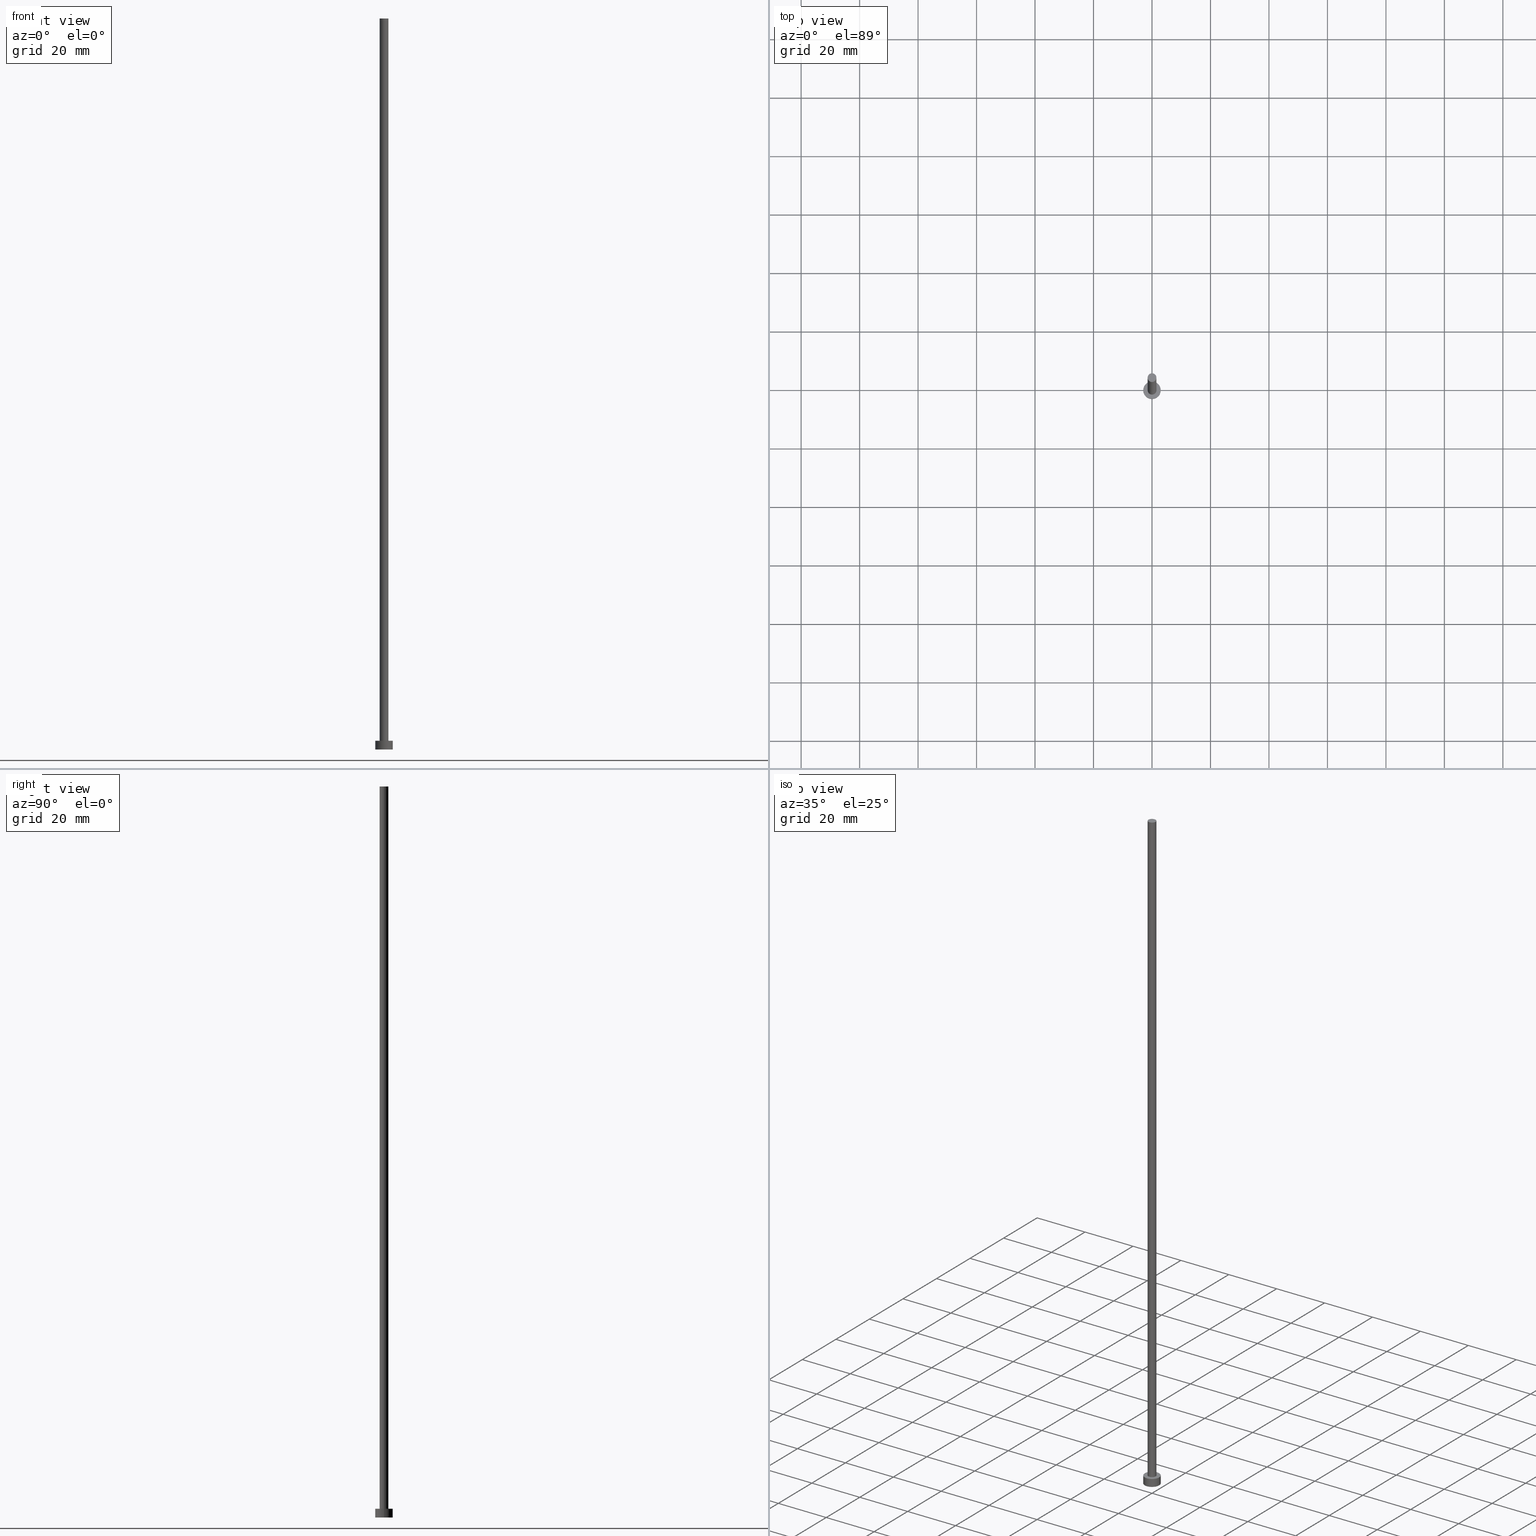
[diagram: canonical four-view strip — front | top / right | iso, engineering-drawing reading convention]
A machine part, canonical four-view strip (front | top / right | iso — engineering-drawing reading convention). The complete STEP part file that produces these views, byte-faithful:
ISO-10303-21;
HEADER;
FILE_DESCRIPTION (( 'STEP AP203' ),
    '1' );
FILE_NAME ('7383.STEP',
    '2023-02-13T16:26:57',
    ( '' ),
    ( '' ),
    'SwSTEP 2.0',
    'SolidWorks 2019',
    '' );
FILE_SCHEMA (( 'CONFIG_CONTROL_DESIGN' ));
ENDSEC;

DATA;
#1 = EDGE_LOOP ( 'NONE', ( #223, #5 ) ) ;
#2 = DIRECTION ( 'NONE',  ( -0.000000000000000000, -0.000000000000000000, -1.000000000000000000 ) ) ;
#3 = ADVANCED_FACE ( 'NONE', ( #151 ), #20, .T. ) ;
#4 = EDGE_LOOP ( 'NONE', ( #90, #170 ) ) ;
#5 = ORIENTED_EDGE ( 'NONE', *, *, #73, .F. ) ;
#6 = DIRECTION ( 'NONE',  ( 0.000000000000000000, 0.000000000000000000, 1.000000000000000000 ) ) ;
#7 = EDGE_CURVE ( 'NONE', #197, #132, #174, .T. ) ;
#8 = CARTESIAN_POINT ( 'NONE',  ( 0.000000000000000000, 0.000000000000000000, 250.0000000000000000 ) ) ;
#9 = AXIS2_PLACEMENT_3D ( 'NONE', #243, #116, #184 ) ;
#10 = PLANE ( 'NONE',  #245 ) ;
#11 = DIRECTION ( 'NONE',  ( 0.000000000000000000, 0.000000000000000000, 1.000000000000000000 ) ) ;
#12 = COORDINATED_UNIVERSAL_TIME_OFFSET ( 1, 0, .AHEAD. ) ;
#13 = ADVANCED_FACE ( 'NONE', ( #29 ), #205, .T. ) ;
#14 = DIRECTION ( 'NONE',  ( -0.000000000000000000, -0.000000000000000000, -1.000000000000000000 ) ) ;
#15 = CIRCLE ( 'NONE', #146, 3.000000000000000444 ) ;
#16 = EDGE_CURVE ( 'NONE', #197, #154, #200, .T. ) ;
#17 = CIRCLE ( 'NONE', #9, 1.500000000000000222 ) ;
#18 = EDGE_LOOP ( 'NONE', ( #94, #79, #106, #176 ) ) ;
#19 = AXIS2_PLACEMENT_3D ( 'NONE', #246, #61, #135 ) ;
#20 = CYLINDRICAL_SURFACE ( 'NONE', #122, 3.000000000000000444 ) ;
#21 = EDGE_LOOP ( 'NONE', ( #193, #43, #255, #239 ) ) ;
#22 = APPROVAL_ROLE ( '' ) ;
#23 = ORIENTED_EDGE ( 'NONE', *, *, #16, .F. ) ;
#24 = PERSON_AND_ORGANIZATION_ROLE ( 'design_owner' ) ;
#25 = LOCAL_TIME ( 17, 26, 57.00000000000000000, #147 ) ;
#26 = PERSON_AND_ORGANIZATION_ROLE ( 'creator' ) ;
#27 = CARTESIAN_POINT ( 'NONE',  ( -1.500000000000000222, 0.000000000000000000, 250.0000000000000000 ) ) ;
#28 = EDGE_CURVE ( 'NONE', #134, #41, #182, .T. ) ;
#29 = FACE_OUTER_BOUND ( 'NONE', #18, .T. ) ;
#30 = DIRECTION ( 'NONE',  ( 0.000000000000000000, 0.000000000000000000, 1.000000000000000000 ) ) ;
#31 = CARTESIAN_POINT ( 'NONE',  ( 0.000000000000000000, 0.000000000000000000, 0.000000000000000000 ) ) ;
#32 = CC_DESIGN_PERSON_AND_ORGANIZATION_ASSIGNMENT ( #47, #24, ( #65 ) ) ;
#33 = CARTESIAN_POINT ( 'NONE',  ( 0.000000000000000000, 0.000000000000000000, 3.000000000000000000 ) ) ;
#34 =( LENGTH_UNIT ( ) NAMED_UNIT ( * ) SI_UNIT ( .MILLI., .METRE. ) );
#35 = CYLINDRICAL_SURFACE ( 'NONE', #207, 1.500000000000000222 ) ;
#36 = APPLICATION_CONTEXT ( 'configuration controlled 3d designs of mechanical parts and assemblies' ) ;
#37 = CC_DESIGN_PERSON_AND_ORGANIZATION_ASSIGNMENT ( #253, #148, ( #107 ) ) ;
#38 = SHAPE_DEFINITION_REPRESENTATION ( #121, #198 ) ;
#39 = ORIENTED_EDGE ( 'NONE', *, *, #230, .T. ) ;
#40 = AXIS2_PLACEMENT_3D ( 'NONE', #247, #11, #67 ) ;
#41 = VERTEX_POINT ( 'NONE', #117 ) ;
#42 = LOCAL_TIME ( 17, 26, 57.00000000000000000, #12 ) ;
#43 = ORIENTED_EDGE ( 'NONE', *, *, #108, .F. ) ;
#44 = DIRECTION ( 'NONE',  ( 0.000000000000000000, 0.000000000000000000, 1.000000000000000000 ) ) ;
#45 = LINE ( 'NONE', #199, #75 ) ;
#46 = VERTEX_POINT ( 'NONE', #204 ) ;
#47 = PERSON_AND_ORGANIZATION ( #56, #165 ) ;
#48 = PRODUCT_RELATED_PRODUCT_CATEGORY ( 'detail', '', ( #65 ) ) ;
#49 = CARTESIAN_POINT ( 'NONE',  ( 0.000000000000000000, 0.000000000000000000, 250.0000000000000000 ) ) ;
#50 = PLANE ( 'NONE',  #40 ) ;
#51 = VECTOR ( 'NONE', #52, 1000.000000000000000 ) ;
#52 = DIRECTION ( 'NONE',  ( -0.000000000000000000, -0.000000000000000000, -1.000000000000000000 ) ) ;
#53 = CARTESIAN_POINT ( 'NONE',  ( -3.000000000000000444, 0.000000000000000000, 3.000000000000000000 ) ) ;
#54 = LOCAL_TIME ( 17, 26, 57.00000000000000000, #248 ) ;
#55 = APPROVAL_ROLE ( '' ) ;
#56 = PERSON ( 'NEUR�EN�', 'NEUR�EN�', 'NEUR�EN�', ('NEUR�EN�'), ('NEUR�EN�'), ('NEUR�EN�') ) ;
#57 = DATE_AND_TIME ( #209, #88 ) ;
#58 = APPROVAL_PERSON_ORGANIZATION ( #185, #192, #55 ) ;
#59 = EDGE_LOOP ( 'NONE', ( #78, #39 ) ) ;
#60 = SECURITY_CLASSIFICATION ( '', '', #72 ) ;
#61 = DIRECTION ( 'NONE',  ( 0.000000000000000000, 0.000000000000000000, 1.000000000000000000 ) ) ;
#62 = DIRECTION ( 'NONE',  ( 1.000000000000000000, 0.000000000000000000, 0.000000000000000000 ) ) ;
#63 = CARTESIAN_POINT ( 'NONE',  ( -1.500000000000000222, 0.000000000000000000, 250.0000000000000000 ) ) ;
#64 = FACE_OUTER_BOUND ( 'NONE', #4, .T. ) ;
#65 = PRODUCT ( '7383', '7383', '', ( #218 ) ) ;
#66 = MANIFOLD_SOLID_BREP ( 'P�idat vysunut�m3', #212 ) ;
#67 = DIRECTION ( 'NONE',  ( 1.000000000000000000, 0.000000000000000000, -0.000000000000000000 ) ) ;
#68 = CALENDAR_DATE ( 2023, 13, 2 ) ;
#69 = DATE_AND_TIME ( #251, #42 ) ;
#70 = DIRECTION ( 'NONE',  ( 1.000000000000000000, 0.000000000000000000, 0.000000000000000000 ) ) ;
#71 = CIRCLE ( 'NONE', #144, 3.000000000000000444 ) ;
#72 = SECURITY_CLASSIFICATION_LEVEL ( 'unclassified' ) ;
#73 = EDGE_CURVE ( 'NONE', #242, #154, #254, .T. ) ;
#74 = CARTESIAN_POINT ( 'NONE',  ( 0.000000000000000000, 0.000000000000000000, 0.000000000000000000 ) ) ;
#75 = VECTOR ( 'NONE', #201, 1000.000000000000000 ) ;
#76 = ADVANCED_FACE ( 'NONE', ( #232 ), #35, .T. ) ;
#77 = VERTEX_POINT ( 'NONE', #100 ) ;
#78 = ORIENTED_EDGE ( 'NONE', *, *, #7, .T. ) ;
#79 = ORIENTED_EDGE ( 'NONE', *, *, #211, .T. ) ;
#80 = DESIGN_CONTEXT ( 'detailed design', #36, 'design' ) ;
#81 = DIRECTION ( 'NONE',  ( 1.000000000000000000, 0.000000000000000000, 0.000000000000000000 ) ) ;
#82 = CARTESIAN_POINT ( 'NONE',  ( -3.000000000000000444, 0.000000000000000000, 3.000000000000000000 ) ) ;
#83 = CIRCLE ( 'NONE', #194, 1.500000000000000222 ) ;
#84 = DIRECTION ( 'NONE',  ( -1.000000000000000000, 0.000000000000000000, 0.000000000000000000 ) ) ;
#85 = APPROVAL_DATE_TIME ( #186, #192 ) ;
#86 = VECTOR ( 'NONE', #244, 1000.000000000000000 ) ;
#87 = CC_DESIGN_DATE_AND_TIME_ASSIGNMENT ( #57, #126, ( #60 ) ) ;
#88 = LOCAL_TIME ( 17, 26, 57.00000000000000000, #210 ) ;
#89 = PERSON_AND_ORGANIZATION ( #56, #165 ) ;
#90 = ORIENTED_EDGE ( 'NONE', *, *, #108, .T. ) ;
#91 = DIRECTION ( 'NONE',  ( -0.000000000000000000, -0.000000000000000000, -1.000000000000000000 ) ) ;
#92 = AXIS2_PLACEMENT_3D ( 'NONE', #8, #160, #179 ) ;
#93 = PERSON_AND_ORGANIZATION ( #56, #165 ) ;
#94 = ORIENTED_EDGE ( 'NONE', *, *, #113, .F. ) ;
#95 = PERSON_AND_ORGANIZATION ( #56, #165 ) ;
#96 = LINE ( 'NONE', #222, #86 ) ;
#97 = DIRECTION ( 'NONE',  ( 0.000000000000000000, 0.000000000000000000, 1.000000000000000000 ) ) ;
#98 = DIRECTION ( 'NONE',  ( 1.000000000000000000, 0.000000000000000000, 0.000000000000000000 ) ) ;
#99 = AXIS2_PLACEMENT_3D ( 'NONE', #33, #14, #84 ) ;
#100 = CARTESIAN_POINT ( 'NONE',  ( 1.500000000000000222, 1.836970198721030181E-16, 250.0000000000000000 ) ) ;
#101 = CARTESIAN_POINT ( 'NONE',  ( 0.000000000000000000, 0.000000000000000000, 250.0000000000000000 ) ) ;
#102 = APPLICATION_PROTOCOL_DEFINITION ( 'international standard', 'config_control_design', 1994, #36 ) ;
#103 = APPLICATION_PROTOCOL_DEFINITION ( 'international standard', 'config_control_design', 1994, #233 ) ;
#104 = LOCAL_TIME ( 17, 26, 57.00000000000000000, #120 ) ;
#105 = ADVANCED_FACE ( 'NONE', ( #64 ), #10, .T. ) ;
#106 = ORIENTED_EDGE ( 'NONE', *, *, #161, .T. ) ;
#107 = PRODUCT_DEFINITION_FORMATION_WITH_SPECIFIED_SOURCE ( 'LIBOVOLN�', '', #65, .NOT_KNOWN. ) ;
#108 = EDGE_CURVE ( 'NONE', #134, #77, #157, .T. ) ;
#109 = EDGE_LOOP ( 'NONE', ( #131, #217, #196, #169 ) ) ;
#110 = AXIS2_PLACEMENT_3D ( 'NONE', #219, #44, #249 ) ;
#111 = CARTESIAN_POINT ( 'NONE',  ( -3.000000000000000444, 0.000000000000000000, 0.000000000000000000 ) ) ;
#112 = ORIENTED_EDGE ( 'NONE', *, *, #73, .T. ) ;
#113 = EDGE_CURVE ( 'NONE', #77, #134, #17, .T. ) ;
#114 = DIRECTION ( 'NONE',  ( 1.000000000000000000, 0.000000000000000000, -0.000000000000000000 ) ) ;
#115 = FACE_OUTER_BOUND ( 'NONE', #1, .T. ) ;
#116 = DIRECTION ( 'NONE',  ( 0.000000000000000000, 0.000000000000000000, 1.000000000000000000 ) ) ;
#117 = CARTESIAN_POINT ( 'NONE',  ( -1.500000000000000222, 0.000000000000000000, 3.000000000000000000 ) ) ;
#118 = CC_DESIGN_SECURITY_CLASSIFICATION ( #60, ( #107 ) ) ;
#119 = FACE_OUTER_BOUND ( 'NONE', #150, .T. ) ;
#120 = COORDINATED_UNIVERSAL_TIME_OFFSET ( 1, 0, .AHEAD. ) ;
#121 = PRODUCT_DEFINITION_SHAPE ( 'NONE', 'NONE',  #220 ) ;
#122 = AXIS2_PLACEMENT_3D ( 'NONE', #172, #2, #153 ) ;
#123 =( NAMED_UNIT ( * ) SI_UNIT ( $, .STERADIAN. ) SOLID_ANGLE_UNIT ( ) );
#124 = ADVANCED_FACE ( 'NONE', ( #183, #181 ), #227, .T. ) ;
#125 = CALENDAR_DATE ( 2023, 13, 2 ) ;
#126 = DATE_TIME_ROLE ( 'classification_date' ) ;
#127 = AXIS2_PLACEMENT_3D ( 'NONE', #74, #130, #238 ) ;
#128 = APPROVAL_STATUS ( 'not_yet_approved' ) ;
#129 = CC_DESIGN_PERSON_AND_ORGANIZATION_ASSIGNMENT ( #89, #189, ( #60 ) ) ;
#130 = DIRECTION ( 'NONE',  ( 0.000000000000000000, 0.000000000000000000, 1.000000000000000000 ) ) ;
#131 = ORIENTED_EDGE ( 'NONE', *, *, #215, .F. ) ;
#132 = VERTEX_POINT ( 'NONE', #203 ) ;
#133 = APPROVAL_PERSON_ORGANIZATION ( #95, #237, #22 ) ;
#134 = VERTEX_POINT ( 'NONE', #27 ) ;
#135 = DIRECTION ( 'NONE',  ( 1.000000000000000000, 0.000000000000000000, 0.000000000000000000 ) ) ;
#136 = ORIENTED_EDGE ( 'NONE', *, *, #226, .F. ) ;
#137 = AXIS2_PLACEMENT_3D ( 'NONE', #31, #166, #70 ) ;
#138 = CARTESIAN_POINT ( 'NONE',  ( 0.000000000000000000, 0.000000000000000000, 0.000000000000000000 ) ) ;
#139 = DIRECTION ( 'NONE',  ( -0.000000000000000000, -0.000000000000000000, -1.000000000000000000 ) ) ;
#140 = DIRECTION ( 'NONE',  ( 0.000000000000000000, 0.000000000000000000, 1.000000000000000000 ) ) ;
#141 = DIRECTION ( 'NONE',  ( 1.000000000000000000, 0.000000000000000000, 0.000000000000000000 ) ) ;
#142 = CC_DESIGN_DATE_AND_TIME_ASSIGNMENT ( #175, #143, ( #220 ) ) ;
#143 = DATE_TIME_ROLE ( 'creation_date' ) ;
#144 = AXIS2_PLACEMENT_3D ( 'NONE', #138, #30, #141 ) ;
#145 = AXIS2_PLACEMENT_3D ( 'NONE', #159, #162, #114 ) ;
#146 = AXIS2_PLACEMENT_3D ( 'NONE', #156, #97, #62 ) ;
#147 = COORDINATED_UNIVERSAL_TIME_OFFSET ( 1, 0, .AHEAD. ) ;
#148 = PERSON_AND_ORGANIZATION_ROLE ( 'creator' ) ;
#149 = UNCERTAINTY_MEASURE_WITH_UNIT (LENGTH_MEASURE( 1.000000000000000082E-05 ), #34, 'distance_accuracy_value', 'NONE');
#150 = EDGE_LOOP ( 'NONE', ( #155, #173, #112, #23 ) ) ;
#151 = FACE_OUTER_BOUND ( 'NONE', #109, .T. ) ;
#152 = ADVANCED_FACE ( 'NONE', ( #115 ), #50, .F. ) ;
#153 = DIRECTION ( 'NONE',  ( -1.000000000000000000, 0.000000000000000000, 0.000000000000000000 ) ) ;
#154 = VERTEX_POINT ( 'NONE', #111 ) ;
#155 = ORIENTED_EDGE ( 'NONE', *, *, #230, .F. ) ;
#156 = CARTESIAN_POINT ( 'NONE',  ( 0.000000000000000000, 0.000000000000000000, 3.000000000000000000 ) ) ;
#157 = CIRCLE ( 'NONE', #168, 1.500000000000000222 ) ;
#158 = CARTESIAN_POINT ( 'NONE',  ( 0.000000000000000000, 0.000000000000000000, 250.0000000000000000 ) ) ;
#159 = CARTESIAN_POINT ( 'NONE',  ( 0.000000000000000000, 0.000000000000000000, 3.000000000000000000 ) ) ;
#160 = DIRECTION ( 'NONE',  ( -0.000000000000000000, -0.000000000000000000, -1.000000000000000000 ) ) ;
#161 = EDGE_CURVE ( 'NONE', #46, #41, #177, .T. ) ;
#162 = DIRECTION ( 'NONE',  ( 0.000000000000000000, 0.000000000000000000, 1.000000000000000000 ) ) ;
#163 = VECTOR ( 'NONE', #139, 1000.000000000000000 ) ;
#164 = APPROVAL_DATE_TIME ( #69, #237 ) ;
#165 = ORGANIZATION ( 'NEUR�EN�', 'NEUR�EN�', '' ) ;
#166 = DIRECTION ( 'NONE',  ( 0.000000000000000000, 0.000000000000000000, 1.000000000000000000 ) ) ;
#167 = CC_DESIGN_PERSON_AND_ORGANIZATION_ASSIGNMENT ( #234, #231, ( #107 ) ) ;
#168 = AXIS2_PLACEMENT_3D ( 'NONE', #49, #140, #98 ) ;
#169 = ORIENTED_EDGE ( 'NONE', *, *, #171, .T. ) ;
#170 = ORIENTED_EDGE ( 'NONE', *, *, #113, .T. ) ;
#171 = EDGE_CURVE ( 'NONE', #154, #242, #71, .T. ) ;
#172 = CARTESIAN_POINT ( 'NONE',  ( 0.000000000000000000, 0.000000000000000000, 3.000000000000000000 ) ) ;
#173 = ORIENTED_EDGE ( 'NONE', *, *, #215, .T. ) ;
#174 = CIRCLE ( 'NONE', #110, 3.000000000000000444 ) ;
#175 = DATE_AND_TIME ( #68, #54 ) ;
#176 = ORIENTED_EDGE ( 'NONE', *, *, #28, .F. ) ;
#177 = CIRCLE ( 'NONE', #19, 1.500000000000000222 ) ;
#178 = CARTESIAN_POINT ( 'NONE',  ( 0.000000000000000000, 0.000000000000000000, 3.000000000000000000 ) ) ;
#179 = DIRECTION ( 'NONE',  ( -1.000000000000000000, 0.000000000000000000, 0.000000000000000000 ) ) ;
#180 = DIRECTION ( 'NONE',  ( 1.000000000000000000, 0.000000000000000000, -0.000000000000000000 ) ) ;
#181 = FACE_OUTER_BOUND ( 'NONE', #59, .T. ) ;
#182 = LINE ( 'NONE', #63, #163 ) ;
#183 = FACE_BOUND ( 'NONE', #216, .T. ) ;
#184 = DIRECTION ( 'NONE',  ( 1.000000000000000000, 0.000000000000000000, 0.000000000000000000 ) ) ;
#185 = PERSON_AND_ORGANIZATION ( #56, #165 ) ;
#186 = DATE_AND_TIME ( #206, #104 ) ;
#187 =( NAMED_UNIT ( * ) PLANE_ANGLE_UNIT ( ) SI_UNIT ( $, .RADIAN. ) );
#188 = APPROVAL_ROLE ( '' ) ;
#189 = PERSON_AND_ORGANIZATION_ROLE ( 'classification_officer' ) ;
#190 = APPROVAL ( #128, 'NEUR�EN�' ) ;
#191 = DIRECTION ( 'NONE',  ( -1.000000000000000000, 0.000000000000000000, 0.000000000000000000 ) ) ;
#192 = APPROVAL ( #229, 'NEUR�EN�' ) ;
#193 = ORIENTED_EDGE ( 'NONE', *, *, #211, .F. ) ;
#194 = AXIS2_PLACEMENT_3D ( 'NONE', #178, #6, #81 ) ;
#195 = ORIENTED_EDGE ( 'NONE', *, *, #161, .F. ) ;
#196 = ORIENTED_EDGE ( 'NONE', *, *, #16, .T. ) ;
#197 = VERTEX_POINT ( 'NONE', #53 ) ;
#198 = ADVANCED_BREP_SHAPE_REPRESENTATION ( '7383', ( #66, #127 ), #225 ) ;
#199 = CARTESIAN_POINT ( 'NONE',  ( 3.000000000000000444, 3.673940397442060361E-16, 3.000000000000000000 ) ) ;
#200 = LINE ( 'NONE', #82, #51 ) ;
#201 = DIRECTION ( 'NONE',  ( -0.000000000000000000, -0.000000000000000000, -1.000000000000000000 ) ) ;
#202 = CYLINDRICAL_SURFACE ( 'NONE', #99, 3.000000000000000444 ) ;
#203 = CARTESIAN_POINT ( 'NONE',  ( 3.000000000000000444, 3.673940397442060361E-16, 3.000000000000000000 ) ) ;
#204 = CARTESIAN_POINT ( 'NONE',  ( 1.500000000000000222, 1.836970198721030181E-16, 3.000000000000000000 ) ) ;
#205 = CYLINDRICAL_SURFACE ( 'NONE', #92, 1.500000000000000222 ) ;
#206 = CALENDAR_DATE ( 2023, 13, 2 ) ;
#207 = AXIS2_PLACEMENT_3D ( 'NONE', #101, #91, #191 ) ;
#208 = ADVANCED_FACE ( 'NONE', ( #119 ), #202, .T. ) ;
#209 = CALENDAR_DATE ( 2023, 13, 2 ) ;
#210 = COORDINATED_UNIVERSAL_TIME_OFFSET ( 1, 0, .AHEAD. ) ;
#211 = EDGE_CURVE ( 'NONE', #77, #46, #96, .T. ) ;
#212 = CLOSED_SHELL ( 'NONE', ( #13, #208, #3, #124, #152, #76, #105 ) ) ;
#213 = PERSON_AND_ORGANIZATION ( #56, #165 ) ;
#214 = APPROVAL_PERSON_ORGANIZATION ( #213, #190, #188 ) ;
#215 = EDGE_CURVE ( 'NONE', #132, #242, #45, .T. ) ;
#216 = EDGE_LOOP ( 'NONE', ( #136, #195 ) ) ;
#217 = ORIENTED_EDGE ( 'NONE', *, *, #7, .F. ) ;
#218 = MECHANICAL_CONTEXT ( 'NONE', #233, 'mechanical' ) ;
#219 = CARTESIAN_POINT ( 'NONE',  ( 0.000000000000000000, 0.000000000000000000, 3.000000000000000000 ) ) ;
#220 = PRODUCT_DEFINITION ( 'NEZN�M�', '', #107, #80 ) ;
#221 = APPROVAL_STATUS ( 'not_yet_approved' ) ;
#222 = CARTESIAN_POINT ( 'NONE',  ( 1.500000000000000222, 1.836970198721030181E-16, 250.0000000000000000 ) ) ;
#223 = ORIENTED_EDGE ( 'NONE', *, *, #171, .F. ) ;
#224 = CARTESIAN_POINT ( 'NONE',  ( 3.000000000000000444, 3.673940397442060361E-16, 0.000000000000000000 ) ) ;
#225 =( GEOMETRIC_REPRESENTATION_CONTEXT ( 3 ) GLOBAL_UNCERTAINTY_ASSIGNED_CONTEXT ( ( #149 ) ) GLOBAL_UNIT_ASSIGNED_CONTEXT ( ( #34, #187, #123 ) ) REPRESENTATION_CONTEXT ( 'NONE', 'WORKASPACE' ) );
#226 = EDGE_CURVE ( 'NONE', #41, #46, #83, .T. ) ;
#227 = PLANE ( 'NONE',  #145 ) ;
#228 = DIRECTION ( 'NONE',  ( 0.000000000000000000, 0.000000000000000000, 1.000000000000000000 ) ) ;
#229 = APPROVAL_STATUS ( 'not_yet_approved' ) ;
#230 = EDGE_CURVE ( 'NONE', #132, #197, #15, .T. ) ;
#231 = PERSON_AND_ORGANIZATION_ROLE ( 'design_supplier' ) ;
#232 = FACE_OUTER_BOUND ( 'NONE', #21, .T. ) ;
#233 = APPLICATION_CONTEXT ( 'configuration controlled 3d designs of mechanical parts and assemblies' ) ;
#234 = PERSON_AND_ORGANIZATION ( #56, #165 ) ;
#235 = CC_DESIGN_APPROVAL ( #192, ( #107 ) ) ;
#236 = DATE_AND_TIME ( #125, #25 ) ;
#237 = APPROVAL ( #221, 'NEUR�EN�' ) ;
#238 = DIRECTION ( 'NONE',  ( 1.000000000000000000, 0.000000000000000000, 0.000000000000000000 ) ) ;
#239 = ORIENTED_EDGE ( 'NONE', *, *, #226, .T. ) ;
#240 = CC_DESIGN_APPROVAL ( #190, ( #60 ) ) ;
#241 = CC_DESIGN_PERSON_AND_ORGANIZATION_ASSIGNMENT ( #93, #26, ( #220 ) ) ;
#242 = VERTEX_POINT ( 'NONE', #224 ) ;
#243 = CARTESIAN_POINT ( 'NONE',  ( 0.000000000000000000, 0.000000000000000000, 250.0000000000000000 ) ) ;
#244 = DIRECTION ( 'NONE',  ( -0.000000000000000000, -0.000000000000000000, -1.000000000000000000 ) ) ;
#245 = AXIS2_PLACEMENT_3D ( 'NONE', #158, #228, #180 ) ;
#246 = CARTESIAN_POINT ( 'NONE',  ( 0.000000000000000000, 0.000000000000000000, 3.000000000000000000 ) ) ;
#247 = CARTESIAN_POINT ( 'NONE',  ( 0.000000000000000000, 0.000000000000000000, 0.000000000000000000 ) ) ;
#248 = COORDINATED_UNIVERSAL_TIME_OFFSET ( 1, 0, .AHEAD. ) ;
#249 = DIRECTION ( 'NONE',  ( 1.000000000000000000, 0.000000000000000000, 0.000000000000000000 ) ) ;
#250 = CC_DESIGN_APPROVAL ( #237, ( #220 ) ) ;
#251 = CALENDAR_DATE ( 2023, 13, 2 ) ;
#252 = APPROVAL_DATE_TIME ( #236, #190 ) ;
#253 = PERSON_AND_ORGANIZATION ( #56, #165 ) ;
#254 = CIRCLE ( 'NONE', #137, 3.000000000000000444 ) ;
#255 = ORIENTED_EDGE ( 'NONE', *, *, #28, .T. ) ;
ENDSEC;
END-ISO-10303-21;
